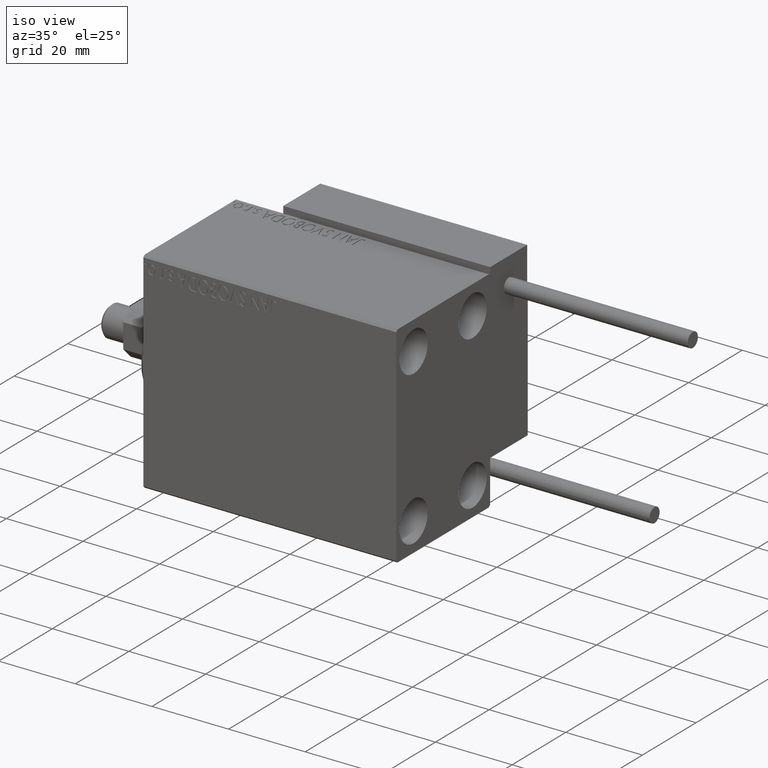
[diagram: clean part render]
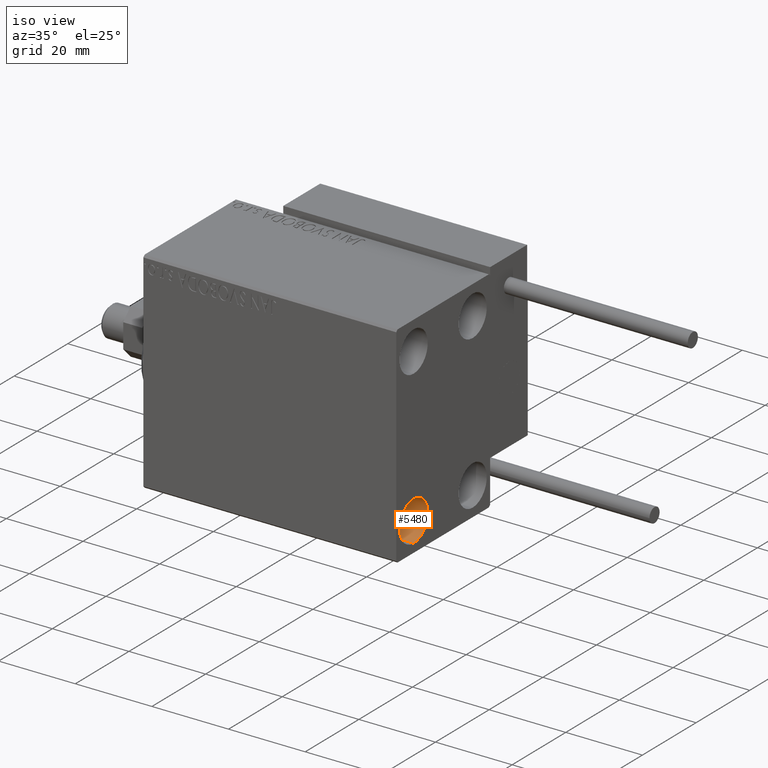
[diagram: same view with one face highlighted and labeled with its STEP entity id]
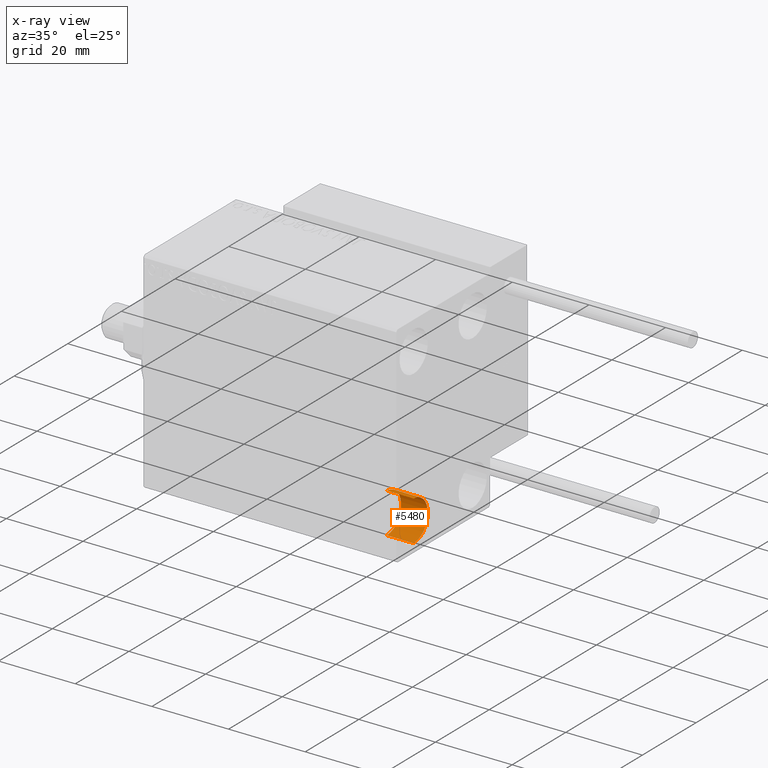
[diagram: x-ray of the same camera — body ghosted, the highlighted face saturated]
A machine part, iso view. The second image highlights one B-rep face of the part: STEP entity #5480.
The next image is the same camera in x-ray: the body ghosted, the highlighted face saturated — about 0% of this face is hidden behind the body in this view.
In plain terms, the highlighted cylindrical surface (edge-blend (fillet) strip) has radius 5.25 mm, axis along (1, 0, 0).
Its self-contained STEP definition (entity closure, byte-faithful):
#3538 = DIRECTION ( 'NONE',  ( 1.000000000000000000, -0.000000000000000000, -0.000000000000000000 ) ) ;
#4248 = CARTESIAN_POINT ( 'NONE',  ( 59.00000000000000711, -11.00000000000000355, -14.75000000000000000 ) ) ;
#5480 = ADVANCED_FACE ( 'NONE', ( #49564 ), #15096, .F. ) ;
#6282 = AXIS2_PLACEMENT_3D ( 'NONE', #39024, #27718, #38278 ) ;
#6912 = DIRECTION ( 'NONE',  ( -1.000000000000000000, -0.000000000000000000, -0.000000000000000000 ) ) ;
#8001 = CARTESIAN_POINT ( 'NONE',  ( 66.00000000000000000, -11.00000000000000355, -25.25000000000000000 ) ) ;
#8484 = CIRCLE ( 'NONE', #45422, 5.250000000000000888 ) ;
#11536 = AXIS2_PLACEMENT_3D ( 'NONE', #46467, #3538, #37968 ) ;
#12971 = EDGE_CURVE ( 'NONE', #31556, #34509, #26106, .T. ) ;
#14781 = DIRECTION ( 'NONE',  ( 1.000000000000000000, -0.000000000000000000, -0.000000000000000000 ) ) ;
#15096 = CYLINDRICAL_SURFACE ( 'NONE', #11536, 5.250000000000000888 ) ;
#16247 = VERTEX_POINT ( 'NONE', #48741 ) ;
#17723 = ORIENTED_EDGE ( 'NONE', *, *, #46545, .F. ) ;
#18848 = ORIENTED_EDGE ( 'NONE', *, *, #20557, .T. ) ;
#18886 = DIRECTION ( 'NONE',  ( 1.000000000000000000, -0.000000000000000000, -0.000000000000000000 ) ) ;
#18895 = CARTESIAN_POINT ( 'NONE',  ( 59.00000000000000711, -11.00000000000000355, -14.75000000000000000 ) ) ;
#19523 = EDGE_LOOP ( 'NONE', ( #42253, #48852, #18848, #17723 ) ) ;
#19624 = VECTOR ( 'NONE', #18886, 1000.000000000000000 ) ;
#20557 = EDGE_CURVE ( 'NONE', #16247, #38997, #35309, .T. ) ;
#26106 = LINE ( 'NONE', #18895, #42419 ) ;
#27718 = DIRECTION ( 'NONE',  ( -1.000000000000000000, -0.000000000000000000, -0.000000000000000000 ) ) ;
#28438 = CIRCLE ( 'NONE', #6282, 5.250000000000000888 ) ;
#31556 = VERTEX_POINT ( 'NONE', #4248 ) ;
#34509 = VERTEX_POINT ( 'NONE', #43802 ) ;
#35309 = LINE ( 'NONE', #50248, #19624 ) ;
#37968 = DIRECTION ( 'NONE',  ( 0.000000000000000000, 0.000000000000000000, -1.000000000000000000 ) ) ;
#37994 = DIRECTION ( 'NONE',  ( 0.000000000000000000, 0.000000000000000000, 1.000000000000000000 ) ) ;
#38270 = EDGE_CURVE ( 'NONE', #31556, #16247, #8484, .T. ) ;
#38278 = DIRECTION ( 'NONE',  ( 0.000000000000000000, 0.000000000000000000, 1.000000000000000000 ) ) ;
#38997 = VERTEX_POINT ( 'NONE', #8001 ) ;
#39024 = CARTESIAN_POINT ( 'NONE',  ( 66.00000000000000000, -11.00000000000000355, -20.00000000000000000 ) ) ;
#42253 = ORIENTED_EDGE ( 'NONE', *, *, #12971, .F. ) ;
#42419 = VECTOR ( 'NONE', #14781, 1000.000000000000000 ) ;
#43802 = CARTESIAN_POINT ( 'NONE',  ( 66.00000000000000000, -11.00000000000000355, -14.75000000000000000 ) ) ;
#45222 = CARTESIAN_POINT ( 'NONE',  ( 59.00000000000000711, -11.00000000000000355, -20.00000000000000000 ) ) ;
#45422 = AXIS2_PLACEMENT_3D ( 'NONE', #45222, #6912, #37994 ) ;
#46467 = CARTESIAN_POINT ( 'NONE',  ( 59.00000000000000711, -11.00000000000000355, -20.00000000000000000 ) ) ;
#46545 = EDGE_CURVE ( 'NONE', #34509, #38997, #28438, .T. ) ;
#48741 = CARTESIAN_POINT ( 'NONE',  ( 59.00000000000000711, -11.00000000000000355, -25.25000000000000000 ) ) ;
#48852 = ORIENTED_EDGE ( 'NONE', *, *, #38270, .T. ) ;
#49564 = FACE_OUTER_BOUND ( 'NONE', #19523, .T. ) ;
#50248 = CARTESIAN_POINT ( 'NONE',  ( 59.00000000000000711, -11.00000000000000355, -25.25000000000000000 ) ) ;